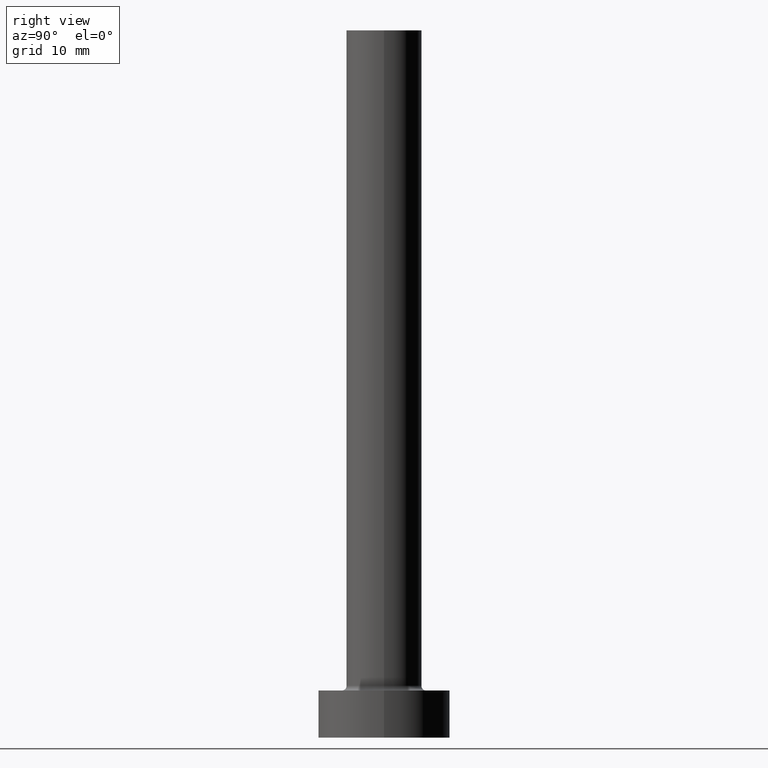
[diagram: clean part render]
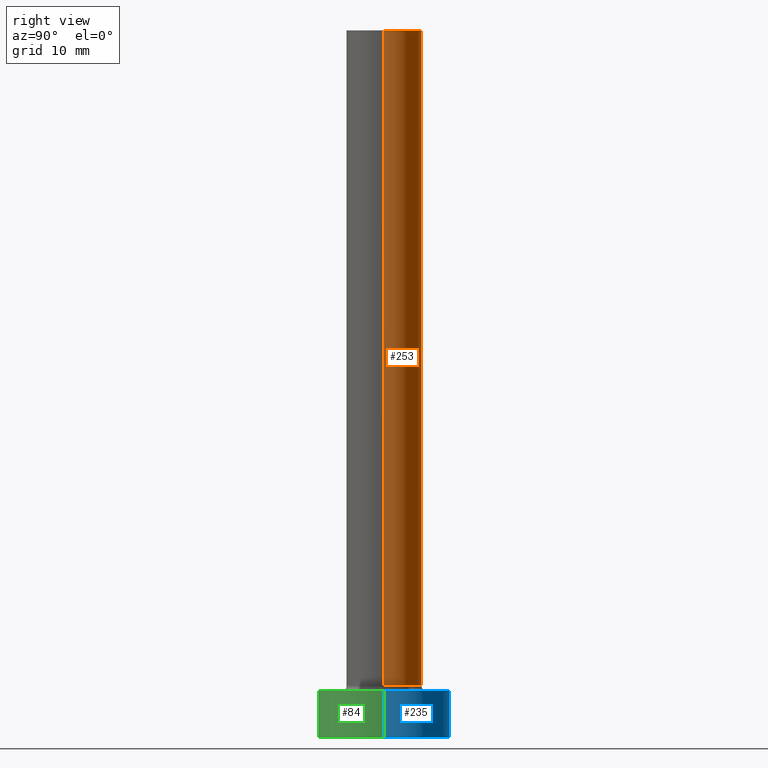
[diagram: same view with three faces highlighted in distinct colors, each labeled with its STEP entity id]
A machine part, right view with three faces highlighted in distinct colors.
Their STEP definitions:

[orange] entity #253 — the highlighted cylindrical surface (partial cylindrical patch) has radius 4 mm, axis along (-0, -0, -1).
#1 = ORIENTED_EDGE ( 'NONE', *, *, #8, .T. ) ;
#3 = CARTESIAN_POINT ( 'NONE',  ( -4.000000000000000000, 0.000000000000000000, 75.00000000000001421 ) ) ;
#6 = AXIS2_PLACEMENT_3D ( 'NONE', #329, #110, #19 ) ;
#8 = EDGE_CURVE ( 'NONE', #32, #313, #249, .T. ) ;
#19 = DIRECTION ( 'NONE',  ( -1.000000000000000000, 0.000000000000000000, 0.000000000000000000 ) ) ;
#28 = AXIS2_PLACEMENT_3D ( 'NONE', #363, #152, #448 ) ;
#32 = VERTEX_POINT ( 'NONE', #315 ) ;
#79 = CARTESIAN_POINT ( 'NONE',  ( 4.000000000000000000, 4.898587196589412829E-16, 75.00000000000001421 ) ) ;
#82 = CARTESIAN_POINT ( 'NONE',  ( -4.000000000000000000, 0.000000000000000000, 5.500000000000005329 ) ) ;
#110 = DIRECTION ( 'NONE',  ( -0.000000000000000000, -0.000000000000000000, -1.000000000000000000 ) ) ;
#123 = DIRECTION ( 'NONE',  ( 0.000000000000000000, 0.000000000000000000, 1.000000000000000000 ) ) ;
#136 = EDGE_LOOP ( 'NONE', ( #241, #439, #1, #238 ) ) ;
#147 = CARTESIAN_POINT ( 'NONE',  ( -4.000000000000000000, 0.000000000000000000, 75.00000000000001421 ) ) ;
#152 = DIRECTION ( 'NONE',  ( 0.000000000000000000, 0.000000000000000000, 1.000000000000000000 ) ) ;
#154 = LINE ( 'NONE', #79, #246 ) ;
#182 = EDGE_CURVE ( 'NONE', #263, #313, #290, .T. ) ;
#222 = CYLINDRICAL_SURFACE ( 'NONE', #6, 4.000000000000000000 ) ;
#225 = FACE_OUTER_BOUND ( 'NONE', #136, .T. ) ;
#238 = ORIENTED_EDGE ( 'NONE', *, *, #182, .F. ) ;
#241 = ORIENTED_EDGE ( 'NONE', *, *, #395, .F. ) ;
#246 = VECTOR ( 'NONE', #400, 1000.000000000000000 ) ;
#249 = CIRCLE ( 'NONE', #407, 4.000000000000000000 ) ;
#253 = ADVANCED_FACE ( 'NONE', ( #225 ), #222, .T. ) ;
#263 = VERTEX_POINT ( 'NONE', #147 ) ;
#290 = LINE ( 'NONE', #3, #332 ) ;
#296 = VERTEX_POINT ( 'NONE', #441 ) ;
#310 = CARTESIAN_POINT ( 'NONE',  ( 0.000000000000000000, 0.000000000000000000, 5.500000000000005329 ) ) ;
#313 = VERTEX_POINT ( 'NONE', #82 ) ;
#315 = CARTESIAN_POINT ( 'NONE',  ( 4.000000000000000000, 4.898587196589412829E-16, 5.500000000000005329 ) ) ;
#324 = DIRECTION ( 'NONE',  ( -0.000000000000000000, -0.000000000000000000, -1.000000000000000000 ) ) ;
#329 = CARTESIAN_POINT ( 'NONE',  ( 0.000000000000000000, 0.000000000000000000, 75.00000000000001421 ) ) ;
#332 = VECTOR ( 'NONE', #324, 1000.000000000000000 ) ;
#363 = CARTESIAN_POINT ( 'NONE',  ( 0.000000000000000000, 0.000000000000000000, 75.00000000000001421 ) ) ;
#366 = EDGE_CURVE ( 'NONE', #296, #32, #154, .T. ) ;
#387 = CIRCLE ( 'NONE', #28, 4.000000000000000000 ) ;
#395 = EDGE_CURVE ( 'NONE', #296, #263, #387, .T. ) ;
#400 = DIRECTION ( 'NONE',  ( -0.000000000000000000, -0.000000000000000000, -1.000000000000000000 ) ) ;
#407 = AXIS2_PLACEMENT_3D ( 'NONE', #310, #123, #452 ) ;
#439 = ORIENTED_EDGE ( 'NONE', *, *, #366, .T. ) ;
#441 = CARTESIAN_POINT ( 'NONE',  ( 4.000000000000000000, 4.898587196589412829E-16, 75.00000000000001421 ) ) ;
#448 = DIRECTION ( 'NONE',  ( 1.000000000000000000, 0.000000000000000000, 0.000000000000000000 ) ) ;
#452 = DIRECTION ( 'NONE',  ( 1.000000000000000000, 0.000000000000000000, 0.000000000000000000 ) ) ;

[blue] entity #235 — the highlighted cylindrical surface (partial cylindrical patch) has radius 7 mm, axis along (-0, -0, -1).
#12 = LINE ( 'NONE', #149, #281 ) ;
#14 = AXIS2_PLACEMENT_3D ( 'NONE', #56, #90, #59 ) ;
#33 = VERTEX_POINT ( 'NONE', #157 ) ;
#52 = LINE ( 'NONE', #217, #208 ) ;
#56 = CARTESIAN_POINT ( 'NONE',  ( 0.000000000000000000, 0.000000000000000000, 5.000000000000000000 ) ) ;
#58 = CARTESIAN_POINT ( 'NONE',  ( -7.000000000000000000, 0.000000000000000000, 5.000000000000000000 ) ) ;
#59 = DIRECTION ( 'NONE',  ( 1.000000000000000000, 0.000000000000000000, 0.000000000000000000 ) ) ;
#90 = DIRECTION ( 'NONE',  ( 0.000000000000000000, 0.000000000000000000, 1.000000000000000000 ) ) ;
#91 = CARTESIAN_POINT ( 'NONE',  ( 0.000000000000000000, 0.000000000000000000, 0.000000000000000000 ) ) ;
#93 = CARTESIAN_POINT ( 'NONE',  ( -7.000000000000000000, 0.000000000000000000, 0.000000000000000000 ) ) ;
#95 = EDGE_CURVE ( 'NONE', #33, #128, #96, .T. ) ;
#96 = CIRCLE ( 'NONE', #130, 7.000000000000000000 ) ;
#99 = FACE_OUTER_BOUND ( 'NONE', #202, .T. ) ;
#107 = VERTEX_POINT ( 'NONE', #58 ) ;
#108 = CARTESIAN_POINT ( 'NONE',  ( 7.000000000000000000, 8.572527594031473190E-16, 5.000000000000000000 ) ) ;
#109 = CARTESIAN_POINT ( 'NONE',  ( 0.000000000000000000, 0.000000000000000000, 5.000000000000000000 ) ) ;
#128 = VERTEX_POINT ( 'NONE', #93 ) ;
#130 = AXIS2_PLACEMENT_3D ( 'NONE', #91, #456, #410 ) ;
#149 = CARTESIAN_POINT ( 'NONE',  ( 7.000000000000000000, 8.572527594031473190E-16, 5.000000000000000000 ) ) ;
#157 = CARTESIAN_POINT ( 'NONE',  ( 7.000000000000000000, 8.572527594031473190E-16, 0.000000000000000000 ) ) ;
#164 = ORIENTED_EDGE ( 'NONE', *, *, #95, .T. ) ;
#202 = EDGE_LOOP ( 'NONE', ( #354, #234, #164, #421 ) ) ;
#208 = VECTOR ( 'NONE', #301, 1000.000000000000000 ) ;
#217 = CARTESIAN_POINT ( 'NONE',  ( -7.000000000000000000, 0.000000000000000000, 5.000000000000000000 ) ) ;
#234 = ORIENTED_EDGE ( 'NONE', *, *, #378, .T. ) ;
#235 = ADVANCED_FACE ( 'NONE', ( #99 ), #248, .T. ) ;
#248 = CYLINDRICAL_SURFACE ( 'NONE', #445, 7.000000000000000000 ) ;
#255 = DIRECTION ( 'NONE',  ( -0.000000000000000000, -0.000000000000000000, -1.000000000000000000 ) ) ;
#281 = VECTOR ( 'NONE', #438, 1000.000000000000000 ) ;
#301 = DIRECTION ( 'NONE',  ( -0.000000000000000000, -0.000000000000000000, -1.000000000000000000 ) ) ;
#317 = EDGE_CURVE ( 'NONE', #107, #128, #52, .T. ) ;
#354 = ORIENTED_EDGE ( 'NONE', *, *, #415, .F. ) ;
#378 = EDGE_CURVE ( 'NONE', #447, #33, #12, .T. ) ;
#394 = DIRECTION ( 'NONE',  ( -1.000000000000000000, 0.000000000000000000, 0.000000000000000000 ) ) ;
#410 = DIRECTION ( 'NONE',  ( 1.000000000000000000, 0.000000000000000000, 0.000000000000000000 ) ) ;
#415 = EDGE_CURVE ( 'NONE', #447, #107, #429, .T. ) ;
#421 = ORIENTED_EDGE ( 'NONE', *, *, #317, .F. ) ;
#429 = CIRCLE ( 'NONE', #14, 7.000000000000000000 ) ;
#438 = DIRECTION ( 'NONE',  ( -0.000000000000000000, -0.000000000000000000, -1.000000000000000000 ) ) ;
#445 = AXIS2_PLACEMENT_3D ( 'NONE', #109, #255, #394 ) ;
#447 = VERTEX_POINT ( 'NONE', #108 ) ;
#456 = DIRECTION ( 'NONE',  ( 0.000000000000000000, 0.000000000000000000, 1.000000000000000000 ) ) ;

[green] entity #84 — the highlighted cylindrical surface (partial cylindrical patch) has radius 7 mm, axis along (-0, -0, -1).
#12 = LINE ( 'NONE', #149, #281 ) ;
#25 = DIRECTION ( 'NONE',  ( -1.000000000000000000, 0.000000000000000000, 0.000000000000000000 ) ) ;
#33 = VERTEX_POINT ( 'NONE', #157 ) ;
#52 = LINE ( 'NONE', #217, #208 ) ;
#58 = CARTESIAN_POINT ( 'NONE',  ( -7.000000000000000000, 0.000000000000000000, 5.000000000000000000 ) ) ;
#76 = DIRECTION ( 'NONE',  ( 0.000000000000000000, 0.000000000000000000, 1.000000000000000000 ) ) ;
#77 = ORIENTED_EDGE ( 'NONE', *, *, #309, .F. ) ;
#84 = ADVANCED_FACE ( 'NONE', ( #401 ), #302, .T. ) ;
#93 = CARTESIAN_POINT ( 'NONE',  ( -7.000000000000000000, 0.000000000000000000, 0.000000000000000000 ) ) ;
#107 = VERTEX_POINT ( 'NONE', #58 ) ;
#108 = CARTESIAN_POINT ( 'NONE',  ( 7.000000000000000000, 8.572527594031473190E-16, 5.000000000000000000 ) ) ;
#125 = DIRECTION ( 'NONE',  ( -0.000000000000000000, -0.000000000000000000, -1.000000000000000000 ) ) ;
#127 = EDGE_LOOP ( 'NONE', ( #379, #77, #454, #195 ) ) ;
#128 = VERTEX_POINT ( 'NONE', #93 ) ;
#129 = AXIS2_PLACEMENT_3D ( 'NONE', #262, #155, #258 ) ;
#149 = CARTESIAN_POINT ( 'NONE',  ( 7.000000000000000000, 8.572527594031473190E-16, 5.000000000000000000 ) ) ;
#155 = DIRECTION ( 'NONE',  ( 0.000000000000000000, 0.000000000000000000, 1.000000000000000000 ) ) ;
#157 = CARTESIAN_POINT ( 'NONE',  ( 7.000000000000000000, 8.572527594031473190E-16, 0.000000000000000000 ) ) ;
#183 = DIRECTION ( 'NONE',  ( 1.000000000000000000, 0.000000000000000000, 0.000000000000000000 ) ) ;
#195 = ORIENTED_EDGE ( 'NONE', *, *, #261, .T. ) ;
#208 = VECTOR ( 'NONE', #301, 1000.000000000000000 ) ;
#217 = CARTESIAN_POINT ( 'NONE',  ( -7.000000000000000000, 0.000000000000000000, 5.000000000000000000 ) ) ;
#240 = CIRCLE ( 'NONE', #409, 7.000000000000000000 ) ;
#258 = DIRECTION ( 'NONE',  ( 1.000000000000000000, 0.000000000000000000, 0.000000000000000000 ) ) ;
#261 = EDGE_CURVE ( 'NONE', #128, #33, #364, .T. ) ;
#262 = CARTESIAN_POINT ( 'NONE',  ( 0.000000000000000000, 0.000000000000000000, 0.000000000000000000 ) ) ;
#281 = VECTOR ( 'NONE', #438, 1000.000000000000000 ) ;
#294 = CARTESIAN_POINT ( 'NONE',  ( 0.000000000000000000, 0.000000000000000000, 5.000000000000000000 ) ) ;
#301 = DIRECTION ( 'NONE',  ( -0.000000000000000000, -0.000000000000000000, -1.000000000000000000 ) ) ;
#302 = CYLINDRICAL_SURFACE ( 'NONE', #335, 7.000000000000000000 ) ;
#309 = EDGE_CURVE ( 'NONE', #107, #447, #240, .T. ) ;
#317 = EDGE_CURVE ( 'NONE', #107, #128, #52, .T. ) ;
#335 = AXIS2_PLACEMENT_3D ( 'NONE', #442, #125, #25 ) ;
#364 = CIRCLE ( 'NONE', #129, 7.000000000000000000 ) ;
#378 = EDGE_CURVE ( 'NONE', #447, #33, #12, .T. ) ;
#379 = ORIENTED_EDGE ( 'NONE', *, *, #378, .F. ) ;
#401 = FACE_OUTER_BOUND ( 'NONE', #127, .T. ) ;
#409 = AXIS2_PLACEMENT_3D ( 'NONE', #294, #76, #183 ) ;
#438 = DIRECTION ( 'NONE',  ( -0.000000000000000000, -0.000000000000000000, -1.000000000000000000 ) ) ;
#442 = CARTESIAN_POINT ( 'NONE',  ( 0.000000000000000000, 0.000000000000000000, 5.000000000000000000 ) ) ;
#447 = VERTEX_POINT ( 'NONE', #108 ) ;
#454 = ORIENTED_EDGE ( 'NONE', *, *, #317, .T. ) ;